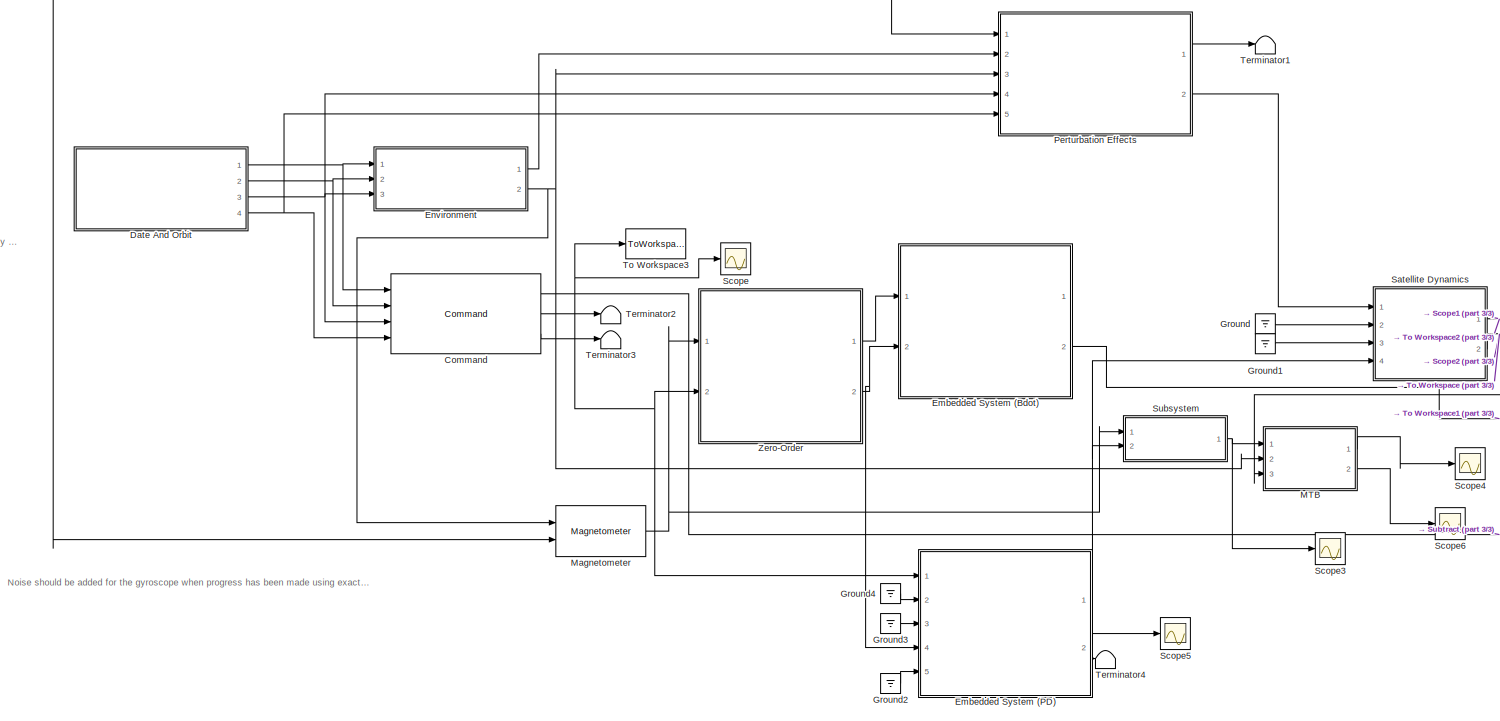
[diagram: root canvas - part 1/3, center side, full height]
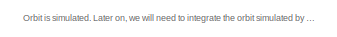
[diagram: root canvas - part 2/3, middle left region]
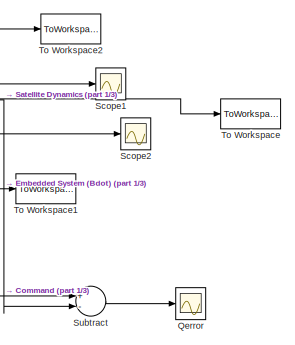
[diagram: root canvas - part 3/3, middle right region]
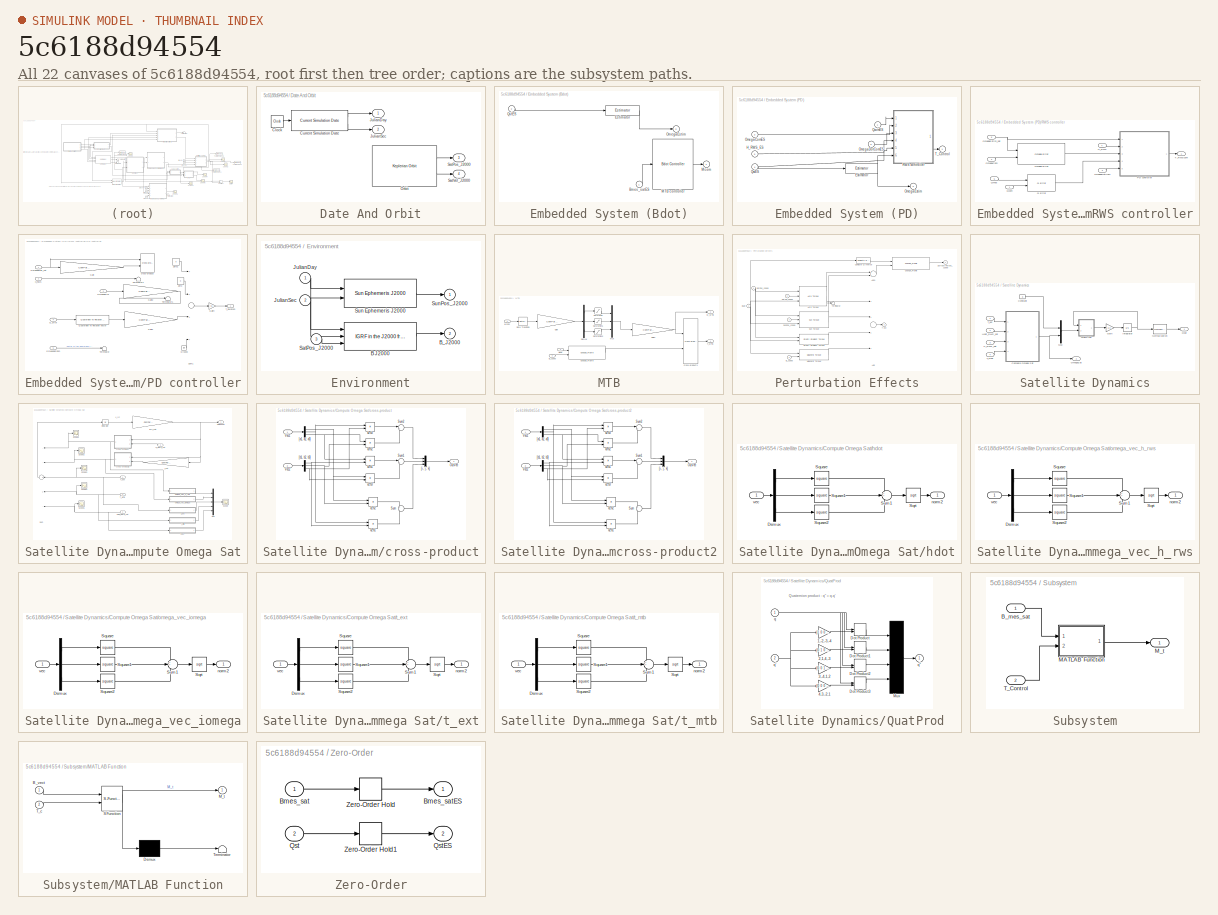
[diagram: thumbnail index - all 22 canvases of the model, root first then tree order]
MODEL slx_5c6188d94554
KIND model
CONFIG AbsTol = auto
CONFIG EnableMultiTasking = off
CONFIG FixedStep = ConfParam.confOrbit.dt
CONFIG MaxStep = auto
CONFIG MinStep = auto
CONFIG RelTol = 1e-3
CONFIG SampleTimeConstraint = Unconstrained
CONFIG Solver = ode4
CONFIG SolverName = ode4
CONFIG StartTime = 0
CONFIG StopTime = 5000
BLOCK [Reference] Command  REF=Command/Command
  Ports = [4, 3]
  SourceBlock = Command/Command
  SourceType = SubSystem
BLOCK [SubSystem] Date And Orbit
  Ports = [0, 4]
  RequestExecContextInheritance = off
BLOCK [Clock] Date And Orbit/Clock
BLOCK [Reference] Date And Orbit/Current Simulation Date  REF=Date/Current Simulation Date
  Ports = [1, 2]
  SourceBlock = Date/Current Simulation Date
  SourceType = SubSystem
BLOCK [Outport] Date And Orbit/JulianDay
  IconDisplay = Port number
BLOCK [Outport] Date And Orbit/JulianSec
  IconDisplay = Port number
  Port = 2
BLOCK [Reference] Date And Orbit/Orbit  REF=KepOrbit/Keplerian Orbit
  Ports = [0, 2]
  SourceBlock = KepOrbit/Keplerian Orbit
  SourceType = SubSystem
BLOCK [Outport] Date And Orbit/SatPos_J2000
  IconDisplay = Port number
  Port = 3
BLOCK [Outport] Date And Orbit/SatVel_J2000
  IconDisplay = Port number
  Port = 4
BLOCK [SubSystem] Embedded System (Bdot)
  Ports = [2, 2]
  RequestExecContextInheritance = off
BLOCK [Inport] Embedded System (Bdot)/Bmes_satES
  IconDisplay = Port number
BLOCK [Reference] Embedded System (Bdot)/Estimator  REF=Estimator/Estimator
  Ports = [1, 1]
  SourceBlock = Estimator/Estimator
  SourceType = SubSystem
BLOCK [Reference] Embedded System (Bdot)/MTB controller  REF=BdotController/Bdot Controller
  Ports = [1, 1]
  SourceBlock = BdotController/Bdot Controller
  SourceType = SubSystem
BLOCK [Outport] Embedded System (Bdot)/Mcom
  IconDisplay = Port number
BLOCK [Outport] Embedded System (Bdot)/OmegaEstim
  IconDisplay = Port number
  Port = 2
BLOCK [Inport] Embedded System (Bdot)/QstES
  IconDisplay = Port number
  Port = 2
BLOCK [SubSystem] Embedded System (PD)
  Ports = [5, 2]
  RequestExecContextInheritance = off
BLOCK [Reference] Embedded System (PD)/Estimator  REF=Estimator/Estimator
  Ports = [1, 1]
  SourceBlock = Estimator/Estimator
  SourceType = SubSystem
BLOCK [Inport] Embedded System (PD)/H_RWS_ES
  IconDisplay = Port number
  Port = 5
BLOCK [Inport] Embedded System (PD)/OmegaComES
  IconDisplay = Port number
  Port = 2
BLOCK [Inport] Embedded System (PD)/OmegaDotComES
  IconDisplay = Port number
  Port = 3
BLOCK [Outport] Embedded System (PD)/OmegaEstim
  IconDisplay = Port number
  Port = 2
BLOCK [Inport] Embedded System (PD)/QcomES
  IconDisplay = Port number
BLOCK [Inport] Embedded System (PD)/QstES
  IconDisplay = Port number
  Port = 4
BLOCK [SubSystem] Embedded System (PD)/RWS controller
  AncestorBlock = RWS_PDcontroller/RWS PD controller
  Ports = [6, 1]
  RequestExecContextInheritance = off
BLOCK [Inport] Embedded System (PD)/RWS controller/H_RWS
  IconDisplay = Port number
  Port = 4
BLOCK [Reference] Embedded System (PD)/RWS controller/Omega Error  REF=OmegaError/Omega Error
  Ports = [2, 1]
  SourceBlock = OmegaError/Omega Error
  SourceType = SubSystem
BLOCK [Inport] Embedded System (PD)/RWS controller/OmegaCom
  IconDisplay = Port number
  Port = 2
BLOCK [Inport] Embedded System (PD)/RWS controller/OmegaDotCom
  IconDisplay = Port number
  Port = 3
BLOCK [Inport] Embedded System (PD)/RWS controller/OmegaEstim_sat
  IconDisplay = Port number
  Port = 6
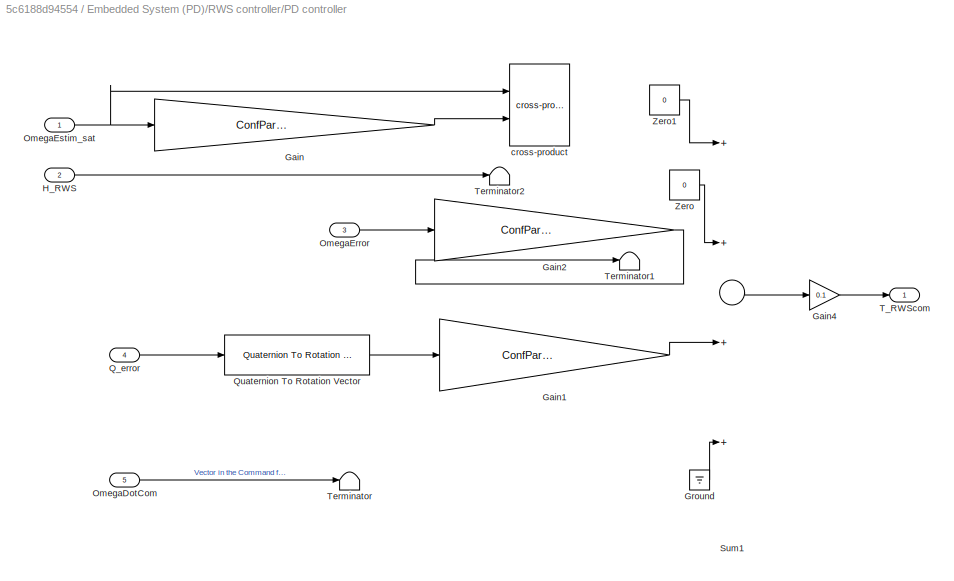
BLOCK [SubSystem] Embedded System (PD)/RWS controller/PD controller
  Ports = [5, 1]
  RequestExecContextInheritance = off
BLOCK [Gain] Embedded System (PD)/RWS controller/PD controller/Gain
  Gain = ConfParam.confRWS_PDcontroller.I_sat
  Multiplication = Matrix(K*u)
  OutDataTypeStr = Inherit: Inherit via internal rule
  ParamDataTypeStr = Inherit: Inherit via internal rule
  SaturateOnIntegerOverflow = off
BLOCK [Gain] Embedded System (PD)/RWS controller/PD controller/Gain1
  Gain = ConfParam.confRWS_PDcontroller.kp
  Multiplication = Matrix(K*u)
  OutDataTypeStr = Inherit: Inherit via internal rule
  ParamDataTypeStr = Inherit: Inherit via internal rule
  SaturateOnIntegerOverflow = off
BLOCK [Gain] Embedded System (PD)/RWS controller/PD controller/Gain2
  Gain = ConfParam.confRWS_PDcontroller.kd
  Multiplication = Matrix(K*u)
  OutDataTypeStr = Inherit: Inherit via internal rule
  ParamDataTypeStr = Inherit: Inherit via internal rule
  SaturateOnIntegerOverflow = off
BLOCK [Gain] Embedded System (PD)/RWS controller/PD controller/Gain4
  Gain = 0.1
  OutDataTypeStr = Inherit: Inherit via internal rule
  ParamDataTypeStr = Inherit: Inherit via internal rule
  SaturateOnIntegerOverflow = off
BLOCK [Ground] Embedded System (PD)/RWS controller/PD controller/Ground
BLOCK [Inport] Embedded System (PD)/RWS controller/PD controller/H_RWS
  IconDisplay = Port number
  Port = 2
BLOCK [Inport] Embedded System (PD)/RWS controller/PD controller/OmegaDotCom
  IconDisplay = Port number
  Port = 5
BLOCK [Inport] Embedded System (PD)/RWS controller/PD controller/OmegaError
  IconDisplay = Port number
  Port = 3
BLOCK [Inport] Embedded System (PD)/RWS controller/PD controller/OmegaEstim_sat
  IconDisplay = Port number
BLOCK [Inport] Embedded System (PD)/RWS controller/PD controller/Q_error
  IconDisplay = Port number
  Port = 4
BLOCK [Reference] Embedded System (PD)/RWS controller/PD controller/Quaternion To Rotation Vector  REF=Quat2Rot/Quaternion To Rotation Vector
  Ports = [1, 1]
  SourceBlock = Quat2Rot/Quaternion To Rotation Vector
  SourceType = SubSystem
BLOCK [Sum] Embedded System (PD)/RWS controller/PD controller/Sum1
  InputSameDT = off
  Inputs = ++++
  OutDataTypeStr = Inherit: Inherit via internal rule
  Ports = [4, 1]
  SaturateOnIntegerOverflow = off
BLOCK [Outport] Embedded System (PD)/RWS controller/PD controller/T_RWScom
  IconDisplay = Port number
BLOCK [Terminator] Embedded System (PD)/RWS controller/PD controller/Terminator
BLOCK [Terminator] Embedded System (PD)/RWS controller/PD controller/Terminator1
BLOCK [Terminator] Embedded System (PD)/RWS controller/PD controller/Terminator2
BLOCK [Constant] Embedded System (PD)/RWS controller/PD controller/Zero
  Value = 0
BLOCK [Constant] Embedded System (PD)/RWS controller/PD controller/Zero1
  Value = 0
BLOCK [Reference] Embedded System (PD)/RWS controller/PD controller/cross-product  REF=CrossProd/cross-product
  Ports = [2, 1]
  SourceBlock = CrossProd/cross-product
  SourceType = SubSystem
BLOCK [Reference] Embedded System (PD)/RWS controller/Q Error  REF=Qerror/Q Error
  Ports = [2, 1]
  SourceBlock = Qerror/Q Error
  SourceType = SubSystem
BLOCK [Inport] Embedded System (PD)/RWS controller/Qcom
  IconDisplay = Port number
BLOCK [Inport] Embedded System (PD)/RWS controller/Qmes
  IconDisplay = Port number
  Port = 5
BLOCK [Outport] Embedded System (PD)/RWS controller/T_RWScom
  IconDisplay = Port number
BLOCK [Outport] Embedded System (PD)/T_Control
  IconDisplay = Port number
BLOCK [SubSystem] Environment
  Ports = [3, 2]
  RequestExecContextInheritance = off
BLOCK [Reference] Environment/B J2000  REF=IGRF/IGRF in the J2000 frame
  Ports = [3, 1]
  SourceBlock = IGRF/IGRF in the J2000 frame
  SourceType = SubSystem
BLOCK [Outport] Environment/B_J2000
  IconDisplay = Port number
  Port = 2
BLOCK [Inport] Environment/JulianDay
  IconDisplay = Port number
BLOCK [Inport] Environment/JulianSec
  IconDisplay = Port number
  Port = 2
BLOCK [Inport] Environment/SatPos_J2000
  IconDisplay = Port number
  Port = 3
BLOCK [Reference] Environment/Sun Ephemeris J2000  REF=SunEphemeris_MathWorks/Sun Ephemeris J2000
  Ports = [2, 1]
  SourceBlock = SunEphemeris_MathWorks/Sun Ephemeris J2000
  SourceType = SubSystem
BLOCK [Outport] Environment/SunPos_J2000
  IconDisplay = Port number
BLOCK [Ground] Ground
BLOCK [Ground] Ground1
BLOCK [Ground] Ground2
BLOCK [Ground] Ground3
BLOCK [Ground] Ground4
BLOCK [SubSystem] MTB
  AncestorBlock = MTB/MTB
  Ports = [3, 2]
  RequestExecContextInheritance = off
BLOCK [Inport] MTB/B_J2000
  IconDisplay = Port number
  Port = 2
BLOCK [Reference] MTB/Change_Frame  REF=ChangeFrame/Change_Frame
  Ports = [2, 1]
  SourceBlock = ChangeFrame/Change_Frame
  SourceType = SubSystem
BLOCK [Demux] MTB/Demux
  DisplayOption = bar
  Outputs = 3
  Ports = [1, 3]
BLOCK [Gain] MTB/Gain
  Gain = ConfParam.confMTB.N_bf
  Multiplication = Matrix(K*u)
  OutDataTypeStr = Inherit: Inherit via internal rule
  ParamDataTypeStr = Inherit: Inherit via internal rule
  SaturateOnIntegerOverflow = off
BLOCK [Gain] MTB/Gain1
  Gain = ConfParam.confMTB.N_MTB
  Multiplication = Matrix(K*u)
  OutDataTypeStr = Inherit: Inherit via internal rule
  ParamDataTypeStr = Inherit: Inherit via internal rule
  SaturateOnIntegerOverflow = off
BLOCK [Outport] MTB/M_MTB
  IconDisplay = Port number
  Port = 2
BLOCK [Inport] MTB/Mcom
  IconDisplay = Port number
BLOCK [Mux] MTB/Mux
  DisplayOption = bar
  Inputs = 3
  Ports = [3, 1]
BLOCK [Inport] MTB/Qsat
  IconDisplay = Port number
  Port = 3
BLOCK [RateTransition] MTB/Rate Transition
  InitialCondition = [0;0;0]
  OutPortSampleTime = ConfParam.confOrbit.dt
BLOCK [Saturate] MTB/Saturation
  InputPortMap = u0
  LowerLimit = -ConfParam.confMTB.M_max
  Ports = [1, 1]
  UpperLimit = ConfParam.confMTB.M_max
BLOCK [Saturate] MTB/Saturation1
  InputPortMap = u0
  LowerLimit = -ConfParam.confMTB.M_max
  Ports = [1, 1]
  UpperLimit = ConfParam.confMTB.M_max
BLOCK [Saturate] MTB/Saturation2
  InputPortMap = u0
  LowerLimit = -ConfParam.confMTB.M_max
  Ports = [1, 1]
  UpperLimit = ConfParam.confMTB.M_max
BLOCK [Outport] MTB/T_MTB
  IconDisplay = Port number
BLOCK [Reference] MTB/cross-product1  REF=CrossProd/cross-product
  Ports = [2, 1]
  SourceBlock = CrossProd/cross-product
  SourceType = SubSystem
BLOCK [Reference] Magnetometer  REF=Magnetometer/Magnetometer
  Ports = [2, 1]
  SourceBlock = Magnetometer/Magnetometer
  SourceType = SubSystem
BLOCK [SubSystem] Perturbation Effects
  Ports = [5, 2]
  RequestExecContextInheritance = off
BLOCK [Sum] Perturbation Effects/Add
  InputSameDT = off
  Inputs = ++++
  OutDataTypeStr = Inherit: Inherit via internal rule
  Ports = [4, 1]
  SaturateOnIntegerOverflow = off
BLOCK [Sum] Perturbation Effects/Add1
  InputSameDT = off
  OutDataTypeStr = Inherit: Inherit via internal rule
  Ports = [2, 1]
  SaturateOnIntegerOverflow = off
BLOCK [Reference] Perturbation Effects/Aero Torque  REF=AeroTorqueA/Aero Torque
  Ports = [3, 3]
  SourceBlock = AeroTorqueA/Aero Torque
  SourceType = SubSystem
BLOCK [Inport] Perturbation Effects/B_J2000
  IconDisplay = Port number
  Port = 3
BLOCK [Reference] Perturbation Effects/Change_Frame  REF=ChangeFrame/Change_Frame
  Ports = [2, 1]
  SourceBlock = ChangeFrame/Change_Frame
  SourceType = SubSystem
BLOCK [Reference] Perturbation Effects/Compute Q Inverse  REF=Qinverse/Compute Q Inverse
  Ports = [1, 1]
  SourceBlock = Qinverse/Compute Q Inverse
  SourceType = SubSystem
BLOCK [Reference] Perturbation Effects/Gravity Gradient Torque  REF=GravGradTorque/Gravity Gradient Torque
  Ports = [2, 1]
  SourceBlock = GravGradTorque/Gravity Gradient Torque
  SourceType = SubSystem
BLOCK [Reference] Perturbation Effects/Magnetic Torque  REF=MagnTorque/Magnetic Torque
  Ports = [2, 1]
  SourceBlock = MagnTorque/Magnetic Torque
  SourceType = SubSystem
BLOCK [Inport] Perturbation Effects/Qsat
  IconDisplay = Port number
BLOCK [Inport] Perturbation Effects/SatPos_J2000
  IconDisplay = Port number
  Port = 4
BLOCK [Inport] Perturbation Effects/SatVel_J2000
  IconDisplay = Port number
  Port = 5
BLOCK [Reference] Perturbation Effects/Sun Torque  REF=SunTorqueA/Sun Torque
  Ports = [3, 2]
  SourceBlock = SunTorqueA/Sun Torque
  SourceType = SubSystem
BLOCK [Inport] Perturbation Effects/SunPos_J2000
  IconDisplay = Port number
  Port = 2
BLOCK [Outport] Perturbation Effects/Surface Forces_J2000
  IconDisplay = Port number
BLOCK [Outport] Perturbation Effects/T ext
  IconDisplay = Port number
  Port = 2
BLOCK [Terminator] Perturbation Effects/Terminator
BLOCK [Scope] Qerror
  Floating = off
  NumInputPorts = 1
  Ports = [1]
  ScopeSpecificationString = Simulink.scopes.TimeScopeBlockCfg('CurrentConfiguration', extmgr.ConfigurationSet(extmgr.Configuration('Core','General UI',true),extmgr.Configuration('Core','Source UI',true),extmgr.Configuration('Sources','WiredSimulink',true,'DataLoggingVariableName','ScopeData2'),extmgr.Configuration('Visuals','Time Domain',true,'SerializedDisplays',{struct('MinYLimReal','-0.72798','MaxYLimReal','1.55183','YLab...<+1408ch>
BLOCK [SubSystem] Satellite Dynamics
  AncestorBlock = SatDyn/Satellite Dynamics
  Ports = [4, 2]
  RequestExecContextInheritance = off
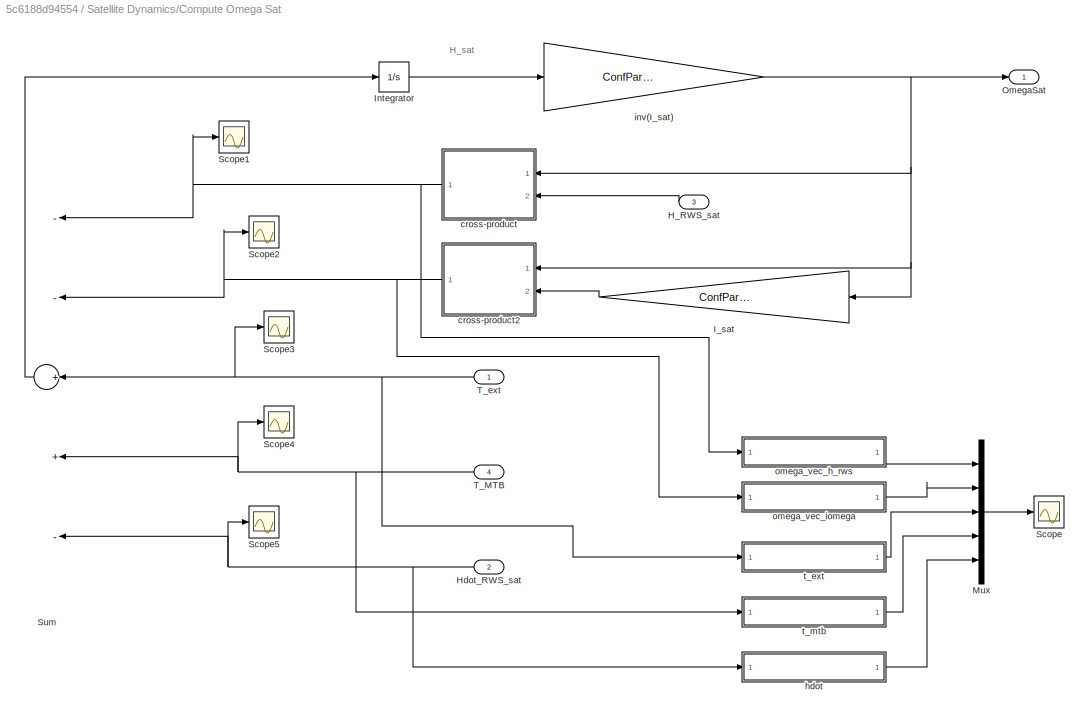
BLOCK [SubSystem] Satellite Dynamics/Compute Omega Sat
  Ports = [4, 1]
  RequestExecContextInheritance = off
BLOCK [Inport] Satellite Dynamics/Compute Omega Sat/H_RWS_sat
  IconDisplay = Port number
  Port = 3
BLOCK [Inport] Satellite Dynamics/Compute Omega Sat/Hdot_RWS_sat
  IconDisplay = Port number
  Port = 2
BLOCK [Gain] Satellite Dynamics/Compute Omega Sat/I_sat
  Gain = ConfParam.confSatFeatures.I_sat
  Multiplication = Matrix(K*u)
  OutDataTypeStr = Inherit: Inherit via internal rule
  ParamDataTypeStr = Inherit: Inherit via internal rule
  SaturateOnIntegerOverflow = off
BLOCK [Integrator] Satellite Dynamics/Compute Omega Sat/Integrator
  InitialCondition = ConfParam.confSatFeatures.I_sat*ConfParam.confSatDyn.InitOmega_sat
  Ports = [1, 1]
BLOCK [Mux] Satellite Dynamics/Compute Omega Sat/Mux
  DisplayOption = bar
  Inputs = 5
  Ports = [5, 1]
BLOCK [Outport] Satellite Dynamics/Compute Omega Sat/OmegaSat
  IconDisplay = Port number
BLOCK [Scope] Satellite Dynamics/Compute Omega Sat/Scope
  Floating = off
  NumInputPorts = 1
  Ports = [1]
  ScopeSpecificationString = Simulink.scopes.TimeScopeBlockCfg('CurrentConfiguration', extmgr.ConfigurationSet(extmgr.Configuration('Core','General UI',true),extmgr.Configuration('Core','Source UI',true),extmgr.Configuration('Sources','WiredSimulink',true),extmgr.Configuration('Visuals','Time Domain',true,'SerializedDisplays',{struct('MinYLimReal','-0.0000001','MaxYLimReal','0.0000011','YLabelReal','','MinYLimMag','0.0000000'...<+1897ch>
BLOCK [Scope] Satellite Dynamics/Compute Omega Sat/Scope1
  Floating = off
  NumInputPorts = 1
  Ports = [1]
  ScopeSpecificationString = Simulink.scopes.TimeScopeBlockCfg('CurrentConfiguration', extmgr.ConfigurationSet(extmgr.Configuration('Core','General UI',true),extmgr.Configuration('Core','Source UI',true),extmgr.Configuration('Sources','WiredSimulink',true,'DataLoggingVariableName','ScopeData1'),extmgr.Configuration('Visuals','Time Domain',true,'SerializedDisplays',{struct('MinYLimReal','-0.000048','MaxYLimReal','0.00005','YLa...<+1442ch>
BLOCK [Scope] Satellite Dynamics/Compute Omega Sat/Scope2
  Floating = off
  NumInputPorts = 1
  Ports = [1]
  ScopeSpecificationString = Simulink.scopes.TimeScopeBlockCfg('CurrentConfiguration', extmgr.ConfigurationSet(extmgr.Configuration('Core','General UI',true),extmgr.Configuration('Core','Source UI',true),extmgr.Configuration('Sources','WiredSimulink',true,'DataLoggingVariableName','ScopeData2'),extmgr.Configuration('Visuals','Time Domain',true,'SerializedDisplays',{struct('MinYLimReal','-0.00009','MaxYLimReal','0.00009','YLab...<+1441ch>
BLOCK [Scope] Satellite Dynamics/Compute Omega Sat/Scope3
  Floating = off
  NumInputPorts = 1
  Ports = [1]
  ScopeSpecificationString = Simulink.scopes.TimeScopeBlockCfg('CurrentConfiguration', extmgr.ConfigurationSet(extmgr.Configuration('Core','General UI',true),extmgr.Configuration('Core','Source UI',true),extmgr.Configuration('Sources','WiredSimulink',true,'DataLoggingVariableName','ScopeData3'),extmgr.Configuration('Visuals','Time Domain',true,'SerializedDisplays',{struct('MinYLimReal','-0.000007','MaxYLimReal','0.000007','YL...<+1422ch>
BLOCK [Scope] Satellite Dynamics/Compute Omega Sat/Scope4
  Floating = off
  NumInputPorts = 1
  Ports = [1]
  ScopeSpecificationString = Simulink.scopes.TimeScopeBlockCfg('CurrentConfiguration', extmgr.ConfigurationSet(extmgr.Configuration('Core','General UI',true),extmgr.Configuration('Core','Source UI',true),extmgr.Configuration('Sources','WiredSimulink',true,'DataLoggingVariableName','ScopeData4'),extmgr.Configuration('Visuals','Time Domain',true,'SerializedDisplays',{struct('MinYLimReal','-0.00001','MaxYLimReal','0.00001','YLab...<+1416ch>
BLOCK [Scope] Satellite Dynamics/Compute Omega Sat/Scope5
  Floating = off
  NumInputPorts = 1
  Ports = [1]
  ScopeSpecificationString = Simulink.scopes.TimeScopeBlockCfg('CurrentConfiguration', extmgr.ConfigurationSet(extmgr.Configuration('Core','General UI',true),extmgr.Configuration('Core','Source UI',true),extmgr.Configuration('Sources','WiredSimulink',true,'DataLoggingVariableName','ScopeData5'),extmgr.Configuration('Visuals','Time Domain',true,'SerializedDisplays',{struct('MinYLimReal','-0.00075','MaxYLimReal','0.00075','YLab...<+1458ch>
BLOCK [Sum] Satellite Dynamics/Compute Omega Sat/Sum
  InputSameDT = off
  Inputs = --++-
  OutDataTypeStr = Inherit: Inherit via internal rule
  Ports = [5, 1]
  SaturateOnIntegerOverflow = off
BLOCK [Inport] Satellite Dynamics/Compute Omega Sat/T_MTB
  IconDisplay = Port number
  Port = 4
BLOCK [Inport] Satellite Dynamics/Compute Omega Sat/T_ext
  IconDisplay = Port number
BLOCK [SubSystem] Satellite Dynamics/Compute Omega Sat/cross-product
  Ports = [2, 1]
  RequestExecContextInheritance = off
BLOCK [Outport] Satellite Dynamics/Compute Omega Sat/cross-product/OutVec
  IconDisplay = Port number
BLOCK [Sum] Satellite Dynamics/Compute Omega Sat/cross-product/Sum
  IconShape = round
  InputSameDT = off
  Inputs = +-
  OutDataTypeStr = Inherit: Inherit via internal rule
  Ports = [2, 1]
  SaturateOnIntegerOverflow = off
BLOCK [Sum] Satellite Dynamics/Compute Omega Sat/cross-product/Sum1
  IconShape = round
  InputSameDT = off
  Inputs = |+-
  OutDataTypeStr = Inherit: Inherit via internal rule
  Ports = [2, 1]
  SaturateOnIntegerOverflow = off
BLOCK [Sum] Satellite Dynamics/Compute Omega Sat/cross-product/Sum2
  IconShape = round
  InputSameDT = off
  Inputs = |+-
  OutDataTypeStr = Inherit: Inherit via internal rule
  Ports = [2, 1]
  SaturateOnIntegerOverflow = off
BLOCK [Inport] Satellite Dynamics/Compute Omega Sat/cross-product/Vec1
  IconDisplay = Port number
BLOCK [Inport] Satellite Dynamics/Compute Omega Sat/cross-product/Vec2
  IconDisplay = Port number
  Port = 2
BLOCK [Demux] Satellite Dynamics/Compute Omega Sat/cross-product/[a1, a2, a3]
  DisplayOption = bar
  Outputs = 3
  Ports = [1, 3]
BLOCK [Demux] Satellite Dynamics/Compute Omega Sat/cross-product/[b1, b2, b3]
  DisplayOption = bar
  Outputs = 3
  Ports = [1, 3]
BLOCK [Mux] Satellite Dynamics/Compute Omega Sat/cross-product/[i, j, k]
  DisplayOption = bar
  Inputs = 3
  Ports = [3, 1]
BLOCK [Product] Satellite Dynamics/Compute Omega Sat/cross-product/a1*b2
  InputSameDT = off
  OutDataTypeStr = Inherit: Inherit via internal rule
  Ports = [2, 1]
  RndMeth = Floor
  SaturateOnIntegerOverflow = off
BLOCK [Product] Satellite Dynamics/Compute Omega Sat/cross-product/a1*b3
  InputSameDT = off
  OutDataTypeStr = Inherit: Inherit via internal rule
  Ports = [2, 1]
  RndMeth = Floor
  SaturateOnIntegerOverflow = off
BLOCK [Product] Satellite Dynamics/Compute Omega Sat/cross-product/a2*b1
  InputSameDT = off
  OutDataTypeStr = Inherit: Inherit via internal rule
  Ports = [2, 1]
  RndMeth = Floor
  SaturateOnIntegerOverflow = off
BLOCK [Product] Satellite Dynamics/Compute Omega Sat/cross-product/a2*b3
  InputSameDT = off
  OutDataTypeStr = Inherit: Inherit via internal rule
  Ports = [2, 1]
  RndMeth = Floor
  SaturateOnIntegerOverflow = off
BLOCK [Product] Satellite Dynamics/Compute Omega Sat/cross-product/a3*b1
  InputSameDT = off
  OutDataTypeStr = Inherit: Inherit via internal rule
  Ports = [2, 1]
  RndMeth = Floor
  SaturateOnIntegerOverflow = off
BLOCK [Product] Satellite Dynamics/Compute Omega Sat/cross-product/a3*b2
  InputSameDT = off
  OutDataTypeStr = Inherit: Inherit via internal rule
  Ports = [2, 1]
  RndMeth = Floor
  SaturateOnIntegerOverflow = off
BLOCK [SubSystem] Satellite Dynamics/Compute Omega Sat/cross-product2
  Ports = [2, 1]
  RequestExecContextInheritance = off
BLOCK [Outport] Satellite Dynamics/Compute Omega Sat/cross-product2/OutVec
  IconDisplay = Port number
BLOCK [Sum] Satellite Dynamics/Compute Omega Sat/cross-product2/Sum
  IconShape = round
  InputSameDT = off
  Inputs = +-
  OutDataTypeStr = Inherit: Inherit via internal rule
  Ports = [2, 1]
  SaturateOnIntegerOverflow = off
BLOCK [Sum] Satellite Dynamics/Compute Omega Sat/cross-product2/Sum1
  IconShape = round
  InputSameDT = off
  Inputs = |+-
  OutDataTypeStr = Inherit: Inherit via internal rule
  Ports = [2, 1]
  SaturateOnIntegerOverflow = off
BLOCK [Sum] Satellite Dynamics/Compute Omega Sat/cross-product2/Sum2
  IconShape = round
  InputSameDT = off
  Inputs = |+-
  OutDataTypeStr = Inherit: Inherit via internal rule
  Ports = [2, 1]
  SaturateOnIntegerOverflow = off
BLOCK [Inport] Satellite Dynamics/Compute Omega Sat/cross-product2/Vec1
  IconDisplay = Port number
BLOCK [Inport] Satellite Dynamics/Compute Omega Sat/cross-product2/Vec2
  IconDisplay = Port number
  Port = 2
BLOCK [Demux] Satellite Dynamics/Compute Omega Sat/cross-product2/[a1, a2, a3]
  DisplayOption = bar
  Outputs = 3
  Ports = [1, 3]
BLOCK [Demux] Satellite Dynamics/Compute Omega Sat/cross-product2/[b1, b2, b3]
  DisplayOption = bar
  Outputs = 3
  Ports = [1, 3]
BLOCK [Mux] Satellite Dynamics/Compute Omega Sat/cross-product2/[i, j, k]
  DisplayOption = bar
  Inputs = 3
  Ports = [3, 1]
BLOCK [Product] Satellite Dynamics/Compute Omega Sat/cross-product2/a1*b2
  InputSameDT = off
  OutDataTypeStr = Inherit: Inherit via internal rule
  Ports = [2, 1]
  RndMeth = Floor
  SaturateOnIntegerOverflow = off
BLOCK [Product] Satellite Dynamics/Compute Omega Sat/cross-product2/a1*b3
  InputSameDT = off
  OutDataTypeStr = Inherit: Inherit via internal rule
  Ports = [2, 1]
  RndMeth = Floor
  SaturateOnIntegerOverflow = off
BLOCK [Product] Satellite Dynamics/Compute Omega Sat/cross-product2/a2*b1
  InputSameDT = off
  OutDataTypeStr = Inherit: Inherit via internal rule
  Ports = [2, 1]
  RndMeth = Floor
  SaturateOnIntegerOverflow = off
BLOCK [Product] Satellite Dynamics/Compute Omega Sat/cross-product2/a2*b3
  InputSameDT = off
  OutDataTypeStr = Inherit: Inherit via internal rule
  Ports = [2, 1]
  RndMeth = Floor
  SaturateOnIntegerOverflow = off
BLOCK [Product] Satellite Dynamics/Compute Omega Sat/cross-product2/a3*b1
  InputSameDT = off
  OutDataTypeStr = Inherit: Inherit via internal rule
  Ports = [2, 1]
  RndMeth = Floor
  SaturateOnIntegerOverflow = off
BLOCK [Product] Satellite Dynamics/Compute Omega Sat/cross-product2/a3*b2
  InputSameDT = off
  OutDataTypeStr = Inherit: Inherit via internal rule
  Ports = [2, 1]
  RndMeth = Floor
  SaturateOnIntegerOverflow = off
BLOCK [SubSystem] Satellite Dynamics/Compute Omega Sat/hdot
  Ports = [1, 1]
  RequestExecContextInheritance = off
BLOCK [Demux] Satellite Dynamics/Compute Omega Sat/hdot/Demux
  DisplayOption = bar
  Outputs = 3
  Ports = [1, 3]
BLOCK [Sqrt] Satellite Dynamics/Compute Omega Sat/hdot/Sqrt
BLOCK [Math] Satellite Dynamics/Compute Omega Sat/hdot/Square
  Operator = square
  Ports = [1, 1]
BLOCK [Math] Satellite Dynamics/Compute Omega Sat/hdot/Square1
  Operator = square
  Ports = [1, 1]
BLOCK [Math] Satellite Dynamics/Compute Omega Sat/hdot/Square2
  Operator = square
  Ports = [1, 1]
BLOCK [Sum] Satellite Dynamics/Compute Omega Sat/hdot/Sum1
  IconShape = round
  InputSameDT = off
  Inputs = 3
  OutDataTypeStr = Inherit: Inherit via internal rule
  Ports = [3, 1]
  SaturateOnIntegerOverflow = off
BLOCK [Outport] Satellite Dynamics/Compute Omega Sat/hdot/norm2
  IconDisplay = Port number
BLOCK [Inport] Satellite Dynamics/Compute Omega Sat/hdot/vec
  IconDisplay = Port number
BLOCK [Gain] Satellite Dynamics/Compute Omega Sat/inv(I_sat)
  Gain = ConfParam.confSatDyn.invI_sat
  Multiplication = Matrix(K*u)
  OutDataTypeStr = Inherit: Inherit via internal rule
  ParamDataTypeStr = Inherit: Inherit via internal rule
  SaturateOnIntegerOverflow = off
BLOCK [SubSystem] Satellite Dynamics/Compute Omega Sat/omega_vec_h_rws
  Ports = [1, 1]
  RequestExecContextInheritance = off
BLOCK [Demux] Satellite Dynamics/Compute Omega Sat/omega_vec_h_rws/Demux
  DisplayOption = bar
  Outputs = 3
  Ports = [1, 3]
BLOCK [Sqrt] Satellite Dynamics/Compute Omega Sat/omega_vec_h_rws/Sqrt
BLOCK [Math] Satellite Dynamics/Compute Omega Sat/omega_vec_h_rws/Square
  Operator = square
  Ports = [1, 1]
BLOCK [Math] Satellite Dynamics/Compute Omega Sat/omega_vec_h_rws/Square1
  Operator = square
  Ports = [1, 1]
BLOCK [Math] Satellite Dynamics/Compute Omega Sat/omega_vec_h_rws/Square2
  Operator = square
  Ports = [1, 1]
BLOCK [Sum] Satellite Dynamics/Compute Omega Sat/omega_vec_h_rws/Sum1
  IconShape = round
  InputSameDT = off
  Inputs = 3
  OutDataTypeStr = Inherit: Inherit via internal rule
  Ports = [3, 1]
  SaturateOnIntegerOverflow = off
BLOCK [Outport] Satellite Dynamics/Compute Omega Sat/omega_vec_h_rws/norm2
  IconDisplay = Port number
BLOCK [Inport] Satellite Dynamics/Compute Omega Sat/omega_vec_h_rws/vec
  IconDisplay = Port number
BLOCK [SubSystem] Satellite Dynamics/Compute Omega Sat/omega_vec_iomega
  Ports = [1, 1]
  RequestExecContextInheritance = off
BLOCK [Demux] Satellite Dynamics/Compute Omega Sat/omega_vec_iomega/Demux
  DisplayOption = bar
  Outputs = 3
  Ports = [1, 3]
BLOCK [Sqrt] Satellite Dynamics/Compute Omega Sat/omega_vec_iomega/Sqrt
BLOCK [Math] Satellite Dynamics/Compute Omega Sat/omega_vec_iomega/Square
  Operator = square
  Ports = [1, 1]
BLOCK [Math] Satellite Dynamics/Compute Omega Sat/omega_vec_iomega/Square1
  Operator = square
  Ports = [1, 1]
BLOCK [Math] Satellite Dynamics/Compute Omega Sat/omega_vec_iomega/Square2
  Operator = square
  Ports = [1, 1]
BLOCK [Sum] Satellite Dynamics/Compute Omega Sat/omega_vec_iomega/Sum1
  IconShape = round
  InputSameDT = off
  Inputs = 3
  OutDataTypeStr = Inherit: Inherit via internal rule
  Ports = [3, 1]
  SaturateOnIntegerOverflow = off
BLOCK [Outport] Satellite Dynamics/Compute Omega Sat/omega_vec_iomega/norm2
  IconDisplay = Port number
BLOCK [Inport] Satellite Dynamics/Compute Omega Sat/omega_vec_iomega/vec
  IconDisplay = Port number
BLOCK [SubSystem] Satellite Dynamics/Compute Omega Sat/t_ext
  Ports = [1, 1]
  RequestExecContextInheritance = off
BLOCK [Demux] Satellite Dynamics/Compute Omega Sat/t_ext/Demux
  DisplayOption = bar
  Outputs = 3
  Ports = [1, 3]
BLOCK [Sqrt] Satellite Dynamics/Compute Omega Sat/t_ext/Sqrt
BLOCK [Math] Satellite Dynamics/Compute Omega Sat/t_ext/Square
  Operator = square
  Ports = [1, 1]
BLOCK [Math] Satellite Dynamics/Compute Omega Sat/t_ext/Square1
  Operator = square
  Ports = [1, 1]
BLOCK [Math] Satellite Dynamics/Compute Omega Sat/t_ext/Square2
  Operator = square
  Ports = [1, 1]
BLOCK [Sum] Satellite Dynamics/Compute Omega Sat/t_ext/Sum1
  IconShape = round
  InputSameDT = off
  Inputs = 3
  OutDataTypeStr = Inherit: Inherit via internal rule
  Ports = [3, 1]
  SaturateOnIntegerOverflow = off
BLOCK [Outport] Satellite Dynamics/Compute Omega Sat/t_ext/norm2
  IconDisplay = Port number
BLOCK [Inport] Satellite Dynamics/Compute Omega Sat/t_ext/vec
  IconDisplay = Port number
BLOCK [SubSystem] Satellite Dynamics/Compute Omega Sat/t_mtb
  Ports = [1, 1]
  RequestExecContextInheritance = off
BLOCK [Demux] Satellite Dynamics/Compute Omega Sat/t_mtb/Demux
  DisplayOption = bar
  Outputs = 3
  Ports = [1, 3]
BLOCK [Sqrt] Satellite Dynamics/Compute Omega Sat/t_mtb/Sqrt
BLOCK [Math] Satellite Dynamics/Compute Omega Sat/t_mtb/Square
  Operator = square
  Ports = [1, 1]
BLOCK [Math] Satellite Dynamics/Compute Omega Sat/t_mtb/Square1
  Operator = square
  Ports = [1, 1]
BLOCK [Math] Satellite Dynamics/Compute Omega Sat/t_mtb/Square2
  Operator = square
  Ports = [1, 1]
BLOCK [Sum] Satellite Dynamics/Compute Omega Sat/t_mtb/Sum1
  IconShape = round
  InputSameDT = off
  Inputs = 3
  OutDataTypeStr = Inherit: Inherit via internal rule
  Ports = [3, 1]
  SaturateOnIntegerOverflow = off
BLOCK [Outport] Satellite Dynamics/Compute Omega Sat/t_mtb/norm2
  IconDisplay = Port number
BLOCK [Inport] Satellite Dynamics/Compute Omega Sat/t_mtb/vec
  IconDisplay = Port number
BLOCK [Constant] Satellite Dynamics/Constant
  Value = 0
BLOCK [Gain] Satellite Dynamics/Gain
  Gain = 1/2
  OutDataTypeStr = Inherit: Inherit via internal rule
  ParamDataTypeStr = Inherit: Inherit via internal rule
  SaturateOnIntegerOverflow = off
BLOCK [Inport] Satellite Dynamics/H_RWS_sat
  IconDisplay = Port number
  Port = 3
BLOCK [Inport] Satellite Dynamics/Hdot_RWS_sat
  IconDisplay = Port number
  Port = 2
BLOCK [Integrator] Satellite Dynamics/Integrator
  InitialCondition = ConfParam.confSatDyn.InitQsat
  Ports = [1, 1]
BLOCK [Mux] Satellite Dynamics/Mux
  DisplayOption = bar
  Inputs = 2
  Ports = [2, 1]
BLOCK [Reference] Satellite Dynamics/Normalization  REF=dspmathops/Normalization
  Ports = [1, 1]
  SourceBlock = dspmathops/Normalization
  SourceProductBaseCode = DS
  SourceProductName = DSP System Toolbox
  SourceType = Normalization
BLOCK [Outport] Satellite Dynamics/OmegaSat
  IconDisplay = Port number
  Port = 2
BLOCK [Outport] Satellite Dynamics/Qsat
  IconDisplay = Port number
BLOCK [SubSystem] Satellite Dynamics/QuatProd
  Ports = [2, 1]
  RTWFcnNameOpts = Use subsystem name
  RTWFileNameOpts = Use subsystem name
  RTWSystemCode = Reusable function
  RequestExecContextInheritance = off
  TreatAsAtomicUnit = on
BLOCK [Gain] Satellite Dynamics/QuatProd/1,-2,-3,-4
  Gain = [1 0 0 0;0 -1 0 0;0 0 -1 0;0 0 0 -1]
  Multiplication = Matrix(K*u) (u vector)
BLOCK [Gain] Satellite Dynamics/QuatProd/2,1,4,-3
  Gain = [0 1 0 0 ; 1 0 0 0 ; 0 0 0 1 ; 0 0 -1 0]
  Multiplication = Matrix(K*u) (u vector)
BLOCK [Gain] Satellite Dynamics/QuatProd/3,-4,1,2
  Gain = [0 0 1 0 ; 0 0 0 -1 ; 1 0 0 0 ; 0 1 0 0]
  Multiplication = Matrix(K*u) (u vector)
BLOCK [Gain] Satellite Dynamics/QuatProd/4,3,-2,1
  Gain = [0 0 0 1;0 0 1 0 ; 0 -1 0 0 ; 1 0 0 0]
  Multiplication = Matrix(K*u) (u vector)
BLOCK [DotProduct] Satellite Dynamics/QuatProd/Dot Product
  OutDataTypeStr = Inherit: Inherit via internal rule
BLOCK [DotProduct] Satellite Dynamics/QuatProd/Dot Product1
  OutDataTypeStr = Inherit: Inherit via internal rule
BLOCK [DotProduct] Satellite Dynamics/QuatProd/Dot Product2
  OutDataTypeStr = Inherit: Inherit via internal rule
BLOCK [DotProduct] Satellite Dynamics/QuatProd/Dot Product3
  OutDataTypeStr = Inherit: Inherit via internal rule
BLOCK [Mux] Satellite Dynamics/QuatProd/Mux
  Ports = [4, 1]
BLOCK [Inport] Satellite Dynamics/QuatProd/q
  IconDisplay = Port number
  OutDataTypeStr = double
  PortDimensions = 4
BLOCK [Outport] Satellite Dynamics/QuatProd/q"
  IconDisplay = Port number
  InitialOutput = 0
  OutDataTypeStr = double
  PortDimensions = 4
BLOCK [Inport] Satellite Dynamics/QuatProd/q'
  IconDisplay = Port number
  OutDataTypeStr = double
  Port = 2
  PortDimensions = 4
BLOCK [Inport] Satellite Dynamics/T_MTB
  IconDisplay = Port number
  Port = 4
BLOCK [Inport] Satellite Dynamics/T_ext
  IconDisplay = Port number
BLOCK [Scope] Scope
  Floating = off
  NumInputPorts = 1
  Ports = [1]
  ScopeSpecificationString = Simulink.scopes.TimeScopeBlockCfg('CurrentConfiguration', extmgr.ConfigurationSet(extmgr.Configuration('Core','General UI',true),extmgr.Configuration('Core','Source UI',true),extmgr.Configuration('Sources','WiredSimulink',true),extmgr.Configuration('Visuals','Time Domain',true,'SerializedDisplays',{struct('MinYLimReal','-1.14379','MaxYLimReal','0.86769','YLabelReal','','MinYLimMag','0.00000','MaxY...<+1373ch>
BLOCK [Scope] Scope1
  Floating = off
  NumInputPorts = 1
  Ports = [1]
  ScopeSpecificationString = Simulink.scopes.TimeScopeBlockCfg('CurrentConfiguration', extmgr.ConfigurationSet(extmgr.Configuration('Core','General UI',true),extmgr.Configuration('Core','Source UI',true),extmgr.Configuration('Sources','WiredSimulink',true,'DataLoggingVariableName','ScopeData1'),extmgr.Configuration('Visuals','Time Domain',true,'SerializedDisplays',{struct('MinYLimReal','-1.24977','MaxYLimReal','1.24997','YLab...<+1558ch>
BLOCK [Scope] Scope2
  Floating = off
  NumInputPorts = 1
  Ports = [1]
  ScopeSpecificationString = Simulink.scopes.TimeScopeBlockCfg('CurrentConfiguration', extmgr.ConfigurationSet(extmgr.Configuration('Core','General UI',true),extmgr.Configuration('Core','Source UI',true),extmgr.Configuration('Sources','WiredSimulink',true,'DataLoggingVariableName','ScopeData2'),extmgr.Configuration('Visuals','Time Domain',true,'SerializedDisplays',{struct('MinYLimReal','-0.01283','MaxYLimReal','0.01357','YLab...<+1458ch>
BLOCK [Scope] Scope3
  Floating = off
  NumInputPorts = 1
  Ports = [1]
  ScopeSpecificationString = Simulink.scopes.TimeScopeBlockCfg('CurrentConfiguration', extmgr.ConfigurationSet(extmgr.Configuration('Core','General UI',true),extmgr.Configuration('Core','Source UI',true),extmgr.Configuration('Sources','WiredSimulink',true,'DataLoggingVariableName','ScopeData1'),extmgr.Configuration('Visuals','Time Domain',true,'SerializedDisplays',{struct('MinYLimReal','-1.00000','MaxYLimReal','1.00000','YLab...<+1398ch>
BLOCK [Scope] Scope4
  Floating = off
  NumInputPorts = 1
  Ports = [1]
  ScopeSpecificationString = Simulink.scopes.TimeScopeBlockCfg('CurrentConfiguration', extmgr.ConfigurationSet(extmgr.Configuration('Core','General UI',true),extmgr.Configuration('Core','Source UI',true),extmgr.Configuration('Sources','WiredSimulink',true,'DataLoggingVariableName','ScopeData2'),extmgr.Configuration('Visuals','Time Domain',true,'SerializedDisplays',{struct('MinYLimReal','-1.00000','MaxYLimReal','1.00000','YLab...<+1414ch>
BLOCK [Scope] Scope5
  Floating = off
  NumInputPorts = 1
  Ports = [1]
  ScopeSpecificationString = Simulink.scopes.TimeScopeBlockCfg('CurrentConfiguration', extmgr.ConfigurationSet(extmgr.Configuration('Core','General UI',true),extmgr.Configuration('Core','Source UI',true),extmgr.Configuration('Sources','WiredSimulink',true,'DataLoggingVariableName','ScopeData3'),extmgr.Configuration('Visuals','Time Domain',true,'SerializedDisplays',{struct('MinYLimReal','-0.0000037','MaxYLimReal','0.0000037','...<+1501ch>
BLOCK [Scope] Scope6
  Floating = off
  NumInputPorts = 1
  Ports = [1]
  ScopeSpecificationString = Simulink.scopes.TimeScopeBlockCfg('CurrentConfiguration', extmgr.ConfigurationSet(extmgr.Configuration('Core','General UI',true),extmgr.Configuration('Core','Source UI',true),extmgr.Configuration('Sources','WiredSimulink',true,'DataLoggingVariableName','ScopeData1'),extmgr.Configuration('Visuals','Time Domain',true,'SerializedDisplays',{struct('MinYLimReal','-1.00000','MaxYLimReal','1.00000','YLab...<+1386ch>
BLOCK [SubSystem] Subsystem
  Ports = [2, 1]
  RequestExecContextInheritance = off
BLOCK [Inport] Subsystem/B_mes_sat
  IconDisplay = Port number
BLOCK [SubSystem] Subsystem/MATLAB Function
  ErrorFcn = Stateflow.Translate.translate
  PermitHierarchicalResolution = ExplicitOnly
  Ports = [2, 1]
  RequestExecContextInheritance = off
  SFBlockType = MATLAB Function
  TreatAsAtomicUnit = on
BLOCK [Demux] Subsystem/MATLAB Function/ Demux 
  Outputs = 1
  Ports = [1, 1]
BLOCK [S-Function] Subsystem/MATLAB Function/ SFunction 
  EnableBusSupport = on
  FunctionName = sf_sfun
  PortCounts = [2 2]
  Ports = [2, 2]
  SFcnIsStateOwnerBlock = off
  SFunctionDeploymentMode = off
  Tag = Stateflow S-Function Control_PD 2
BLOCK [Terminator] Subsystem/MATLAB Function/ Terminator 
BLOCK [Inport] Subsystem/MATLAB Function/B_vect
  IconDisplay = Port number
BLOCK [Outport] Subsystem/MATLAB Function/M_t
  IconDisplay = Port number
BLOCK [Inport] Subsystem/MATLAB Function/T_c
  IconDisplay = Port number
  Port = 2
BLOCK [Outport] Subsystem/M_t
  IconDisplay = Port number
BLOCK [Inport] Subsystem/T_Control
  IconDisplay = Port number
  Port = 2
BLOCK [Sum] Subtract
  InputSameDT = off
  Inputs = +-
  OutDataTypeStr = Inherit: Inherit via internal rule
  Ports = [2, 1]
  SaturateOnIntegerOverflow = off
BLOCK [Terminator] Terminator1
BLOCK [Terminator] Terminator2
BLOCK [Terminator] Terminator3
BLOCK [Terminator] Terminator4
BLOCK [ToWorkspace] To Workspace
  FixptAsFi = on
  MaxDataPoints = inf
  Ports = [1]
  SampleTime = -1
  Save2DSignal = 3-D array (concatenate along third dimension)
  SaveFormat = Timeseries
  VariableName = OmegaSat
BLOCK [ToWorkspace] To Workspace1
  FixptAsFi = on
  MaxDataPoints = inf
  Ports = [1]
  SampleTime = -1
  Save2DSignal = 3-D array (concatenate along third dimension)
  SaveFormat = Timeseries
  VariableName = OmegaEstim
BLOCK [ToWorkspace] To Workspace2
  FixptAsFi = on
  MaxDataPoints = inf
  Ports = [1]
  SampleTime = -1
  Save2DSignal = 3-D array (concatenate along third dimension)
  SaveFormat = Timeseries
  VariableName = Qsat
BLOCK [ToWorkspace] To Workspace3
  FixptAsFi = on
  MaxDataPoints = inf
  Ports = [1]
  SampleTime = -1
  Save2DSignal = 3-D array (concatenate along third dimension)
  SaveFormat = Timeseries
  VariableName = Qcom
BLOCK [SubSystem] Zero-Order
  Ports = [2, 2]
  RequestExecContextInheritance = off
BLOCK [Inport] Zero-Order/Bmes_sat
  IconDisplay = Port number
BLOCK [Outport] Zero-Order/Bmes_satES
  IconDisplay = Port number
BLOCK [Inport] Zero-Order/Qst
  IconDisplay = Port number
  Port = 2
BLOCK [Outport] Zero-Order/QstES
  IconDisplay = Port number
  Port = 2
BLOCK [ZeroOrderHold] Zero-Order/Zero-Order Hold
  SampleTime = 1/ConfParam.confES.frequency
BLOCK [ZeroOrderHold] Zero-Order/Zero-Order Hold1
  SampleTime = 1/ConfParam.confES.frequency
ANNOTATION (root): Noise should be added for the gyroscope when progress has been made using exact attitude measurements.
ANNOTATION (root): Orbit is simulated. Later on, we will need to integrate the orbit simulated by the Mission Analysis team.
ANNOTATION Satellite Dynamics/Compute Omega Sat: H_sat
ANNOTATION Satellite Dynamics/QuatProd: Quaternion product : q" = q.q'
NET Command:1 -> Embedded System (PD):1, Scope:1, Subtract:1, To Workspace3:1, Zero-Order:2
LINE Command:2 -> Terminator2:1
LINE Command:3 -> Terminator3:1
LINE Date And Orbit/Clock:1 -> Date And Orbit/Current Simulation Date:1
LINE Date And Orbit/Current Simulation Date:1 -> Date And Orbit/JulianDay:1
LINE Date And Orbit/Current Simulation Date:2 -> Date And Orbit/JulianSec:1
LINE Date And Orbit/Orbit:1 -> Date And Orbit/SatPos_J2000:1
LINE Date And Orbit/Orbit:2 -> Date And Orbit/SatVel_J2000:1
NET Date And Orbit:1 -> Command:1, Environment:1
NET Date And Orbit:2 -> Command:2, Environment:2
NET Date And Orbit:3 -> Command:3, Environment:3, Perturbation Effects:4
NET Date And Orbit:4 -> Command:4, Perturbation Effects:5
LINE Embedded System (Bdot)/Bmes_satES:1 -> Embedded System (Bdot)/MTB controller:1
LINE Embedded System (Bdot)/Estimator:1 -> Embedded System (Bdot)/OmegaEstim:1
LINE Embedded System (Bdot)/MTB controller:1 -> Embedded System (Bdot)/Mcom:1
LINE Embedded System (Bdot)/QstES:1 -> Embedded System (Bdot)/Estimator:1
LINE Embedded System (Bdot):2 -> To Workspace1:1
NET Embedded System (PD)/Estimator:1 -> Embedded System (PD)/OmegaEstim:1, Embedded System (PD)/RWS controller:6
LINE Embedded System (PD)/H_RWS_ES:1 -> Embedded System (PD)/RWS controller:4
LINE Embedded System (PD)/OmegaComES:1 -> Embedded System (PD)/RWS controller:2
LINE Embedded System (PD)/OmegaDotComES:1 -> Embedded System (PD)/RWS controller:3
LINE Embedded System (PD)/QcomES:1 -> Embedded System (PD)/RWS controller:1
NET Embedded System (PD)/QstES:1 -> Embedded System (PD)/Estimator:1, Embedded System (PD)/RWS controller:5
LINE Embedded System (PD)/RWS controller:1 -> Embedded System (PD)/T_Control:1
NET Embedded System (PD):1 -> Satellite Dynamics:4, Scope5:1, Subsystem:2
LINE Embedded System (PD):2 -> Terminator4:1
LINE Environment/B J2000:1 -> Environment/B_J2000:1
NET Environment/JulianDay:1 -> Environment/B J2000:1, Environment/Sun Ephemeris J2000:1
NET Environment/JulianSec:1 -> Environment/B J2000:2, Environment/Sun Ephemeris J2000:2
LINE Environment/SatPos_J2000:1 -> Environment/B J2000:3
LINE Environment/Sun Ephemeris J2000:1 -> Environment/SunPos_J2000:1
LINE Environment:1 -> Perturbation Effects:2
NET Environment:2 -> MTB:2, Magnetometer:1, Perturbation Effects:3
LINE Ground1:1 -> Satellite Dynamics:3
LINE Ground2:1 -> Embedded System (PD):5
LINE Ground3:1 -> Embedded System (PD):3
LINE Ground4:1 -> Embedded System (PD):2
LINE Ground:1 -> Satellite Dynamics:2
LINE MTB:1 -> Scope4:1
LINE MTB:2 -> Scope6:1
NET Magnetometer:1 -> Subsystem:1, Zero-Order:1
LINE Perturbation Effects/Add1:1 -> Perturbation Effects/Change_Frame:2
LINE Perturbation Effects/Add:1 -> Perturbation Effects/T ext:1
LINE Perturbation Effects/Aero Torque:1 -> Perturbation Effects/Add1:1
LINE Perturbation Effects/Aero Torque:2 -> Perturbation Effects/Add:1
LINE Perturbation Effects/Aero Torque:3 -> Perturbation Effects/Terminator:1
LINE Perturbation Effects/B_J2000:1 -> Perturbation Effects/Magnetic Torque:2
LINE Perturbation Effects/Change_Frame:1 -> Perturbation Effects/Surface Forces_J2000:1
LINE Perturbation Effects/Compute Q Inverse:1 -> Perturbation Effects/Change_Frame:1
LINE Perturbation Effects/Gravity Gradient Torque:1 -> Perturbation Effects/Add:3
LINE Perturbation Effects/Magnetic Torque:1 -> Perturbation Effects/Add:4
NET Perturbation Effects/Qsat:1 -> Perturbation Effects/Aero Torque:3, Perturbation Effects/Compute Q Inverse:1, Perturbation Effects/Gravity Gradient Torque:2, Perturbation Effects/Magnetic Torque:1, Perturbation Effects/Sun Torque:3
NET Perturbation Effects/SatPos_J2000:1 -> Perturbation Effects/Aero Torque:1, Perturbation Effects/Gravity Gradient Torque:1, Perturbation Effects/Sun Torque:1
LINE Perturbation Effects/SatVel_J2000:1 -> Perturbation Effects/Aero Torque:2
LINE Perturbation Effects/Sun Torque:1 -> Perturbation Effects/Add1:2
LINE Perturbation Effects/Sun Torque:2 -> Perturbation Effects/Add:2
LINE Perturbation Effects/SunPos_J2000:1 -> Perturbation Effects/Sun Torque:2
LINE Perturbation Effects:1 -> Terminator1:1
LINE Perturbation Effects:2 -> Satellite Dynamics:1
NET Satellite Dynamics:1 -> MTB:3, Magnetometer:2, Perturbation Effects:1, Scope1:1, Subtract:2, To Workspace2:1
NET Satellite Dynamics:2 -> Scope2:1, To Workspace:1
LINE Subsystem/B_mes_sat:1 -> Subsystem/MATLAB Function:1
LINE Subsystem/MATLAB Function:1 -> Subsystem/M_t:1
LINE Subsystem/T_Control:1 -> Subsystem/MATLAB Function:2
NET Subsystem:1 -> MTB:1, Scope3:1
LINE Subtract:1 -> Qerror:1
LINE Zero-Order/Bmes_sat:1 -> Zero-Order/Zero-Order Hold:1
LINE Zero-Order/Qst:1 -> Zero-Order/Zero-Order Hold1:1
LINE Zero-Order/Zero-Order Hold1:1 -> Zero-Order/QstES:1
LINE Zero-Order/Zero-Order Hold:1 -> Zero-Order/Bmes_satES:1
LINE Zero-Order:1 -> Embedded System (Bdot):1
NET Zero-Order:2 -> Embedded System (Bdot):2, Embedded System (PD):4
note: NET lines group one-source signal fan-out (src -> all destinations, sorted); 1:1 wires keep LINE
CHART Subsystem/MATLAB Function states=1 transitions=1
  STATE_LABEL 'eML_blk_kernel()'
  STATE_LABEL "SCRIPT:\n% Computing of the magnetic moment to apply to the magnetorquer,\n% given the control torque\nfunction M_t = fcn(B_vect, T_c)\n    B_mat = [0, B_vect(3), -B_vect(2);\n            - B_vect(3), 0, B_vect(1);\n            B_vect(2), -B_vect(1), 0];\n    % Correction factor for B singualarity\n%     m = sqrt(det(B_mat' * B_mat));\n%     m0 = 1e-5;\n%     lam0 = 1 ;\n%     if m > m0\n%         k = lam0 * ...<+207ch>"
